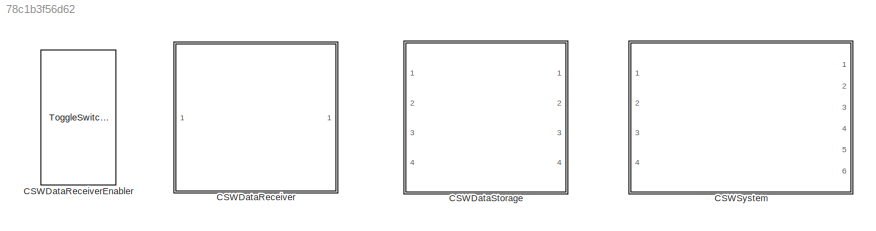
MODEL slx_78c1b3f56d62
KIND library
CONFIG AbsTol = auto
CONFIG EnableMultiTasking = off
CONFIG FixedStep = auto
CONFIG MaxStep = auto
CONFIG MinStep = auto
CONFIG RelTol = 1e-3
CONFIG SampleTimeConstraint = Unconstrained
CONFIG SolverName = VariableStepAuto
CONFIG StartTime = 0.0
CONFIG StopTime = 10.0
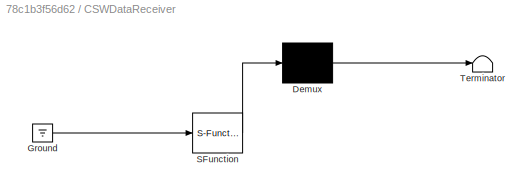
BLOCK [SubSystem] CSWDataReceiver
  ErrorFcn = Stateflow.Translate.translate
  PermitHierarchicalResolution = ExplicitOnly
  Ports = []
  RequestExecContextInheritance = off
  SFBlockType = MATLAB Function
  TreatAsAtomicUnit = on
BLOCK [Demux] CSWDataReceiver/ Demux 
  Outputs = 1
  Ports = [1, 1]
BLOCK [Ground] CSWDataReceiver/ Ground 
BLOCK [S-Function] CSWDataReceiver/ SFunction 
  EnableBusSupport = on
  FunctionName = sf_sfun
  PortCounts = [1 1]
  Ports = [1, 1]
  SFcnIsStateOwnerBlock = off
  SFunctionDeploymentMode = off
  Tag = Stateflow S-Function 10
BLOCK [Terminator] CSWDataReceiver/ Terminator 
BLOCK [ToggleSwitchBlock] CSWDataReceiverEnabler
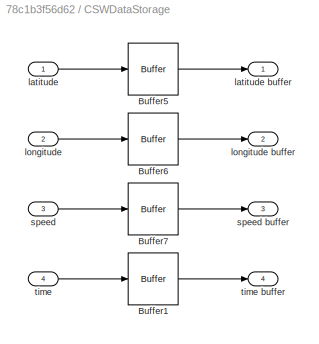
BLOCK [SubSystem] CSWDataStorage
  Ports = [4, 4]
  RequestExecContextInheritance = off
BLOCK [Buffer] CSWDataStorage/Buffer1
  N = 3
  OutputFrames = off
  V = 2
  ic = -199
BLOCK [Buffer] CSWDataStorage/Buffer5
  N = 3
  OutputFrames = off
  V = 2
  ic = -199
BLOCK [Buffer] CSWDataStorage/Buffer6
  N = 3
  OutputFrames = off
  V = 2
  ic = -199
BLOCK [Buffer] CSWDataStorage/Buffer7
  N = 3
  OutputFrames = off
  V = 2
  ic = -199
BLOCK [Inport] CSWDataStorage/latitude
BLOCK [Outport] CSWDataStorage/latitude buffer
BLOCK [Inport] CSWDataStorage/longitude
  Port = 2
BLOCK [Outport] CSWDataStorage/longitude buffer
  Port = 2
BLOCK [Inport] CSWDataStorage/speed
  Port = 3
BLOCK [Outport] CSWDataStorage/speed buffer
  Port = 3
BLOCK [Inport] CSWDataStorage/time
  Port = 4
BLOCK [Outport] CSWDataStorage/time buffer
  Port = 4
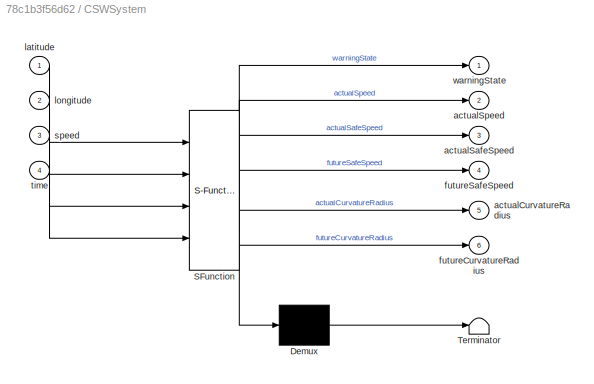
BLOCK [SubSystem] CSWSystem
  ErrorFcn = Stateflow.Translate.translate
  PermitHierarchicalResolution = ExplicitOnly
  Ports = [4, 6]
  RequestExecContextInheritance = off
  SFBlockType = MATLAB Function
  TreatAsAtomicUnit = on
BLOCK [Demux] CSWSystem/ Demux 
  Outputs = 1
  Ports = [1, 1]
BLOCK [S-Function] CSWSystem/ SFunction 
  EnableBusSupport = on
  FunctionName = sf_sfun
  PortCounts = [4 7]
  Ports = [4, 7]
  SFcnIsStateOwnerBlock = off
  SFunctionDeploymentMode = off
  Tag = Stateflow S-Function 1
BLOCK [Terminator] CSWSystem/ Terminator 
BLOCK [Outport] CSWSystem/actualCurvatureRadius
  Port = 5
BLOCK [Outport] CSWSystem/actualSafeSpeed
  Port = 3
BLOCK [Outport] CSWSystem/actualSpeed
  Port = 2
BLOCK [Outport] CSWSystem/futureCurvatureRadius
  Port = 6
BLOCK [Outport] CSWSystem/futureSafeSpeed
  Port = 4
BLOCK [Inport] CSWSystem/latitude
BLOCK [Inport] CSWSystem/longitude
  Port = 2
BLOCK [Inport] CSWSystem/speed
  Port = 3
BLOCK [Inport] CSWSystem/time
  Port = 4
BLOCK [Outport] CSWSystem/warningState
LINE CSWDataStorage/Buffer1:1 -> CSWDataStorage/time buffer:1
LINE CSWDataStorage/Buffer5:1 -> CSWDataStorage/latitude buffer:1
LINE CSWDataStorage/Buffer6:1 -> CSWDataStorage/longitude buffer:1
LINE CSWDataStorage/Buffer7:1 -> CSWDataStorage/speed buffer:1
LINE CSWDataStorage/latitude:1 -> CSWDataStorage/Buffer5:1
LINE CSWDataStorage/longitude:1 -> CSWDataStorage/Buffer6:1
LINE CSWDataStorage/speed:1 -> CSWDataStorage/Buffer7:1
LINE CSWDataStorage/time:1 -> CSWDataStorage/Buffer1:1
CHART CSWSystem states=1 transitions=1
  STATE_LABEL 'eML_blk_kernel()'
  STATE_LABEL "SCRIPT:\n%% main function which represents Curve Speed Warning System uses loaded GPS data from file to compute simulation results which containts warning state, recommended speed etc.\n\nfunction [warningState, actualSpeed, actualSafeSpeed, futureSafeSpeed, actualCurvatureRadius, futureCurvatureRadius] = CSWSystem(latitude,longitude,speed,time)\n    coder.extrinsic('plot','legend','serialport','readl...<+3608ch>"
CHART CSWDataReceiver states=1 transitions=1
  STATE_LABEL 'eML_blk_kernel()'
  STATE_LABEL "SCRIPT:\n%% main function which represents Curve Speed Warning System uses received GPS data from COM port to compute simulation results which containts warning state, recommended speed etc.\n\nfunction CSWDataReceiver %#codegen\n    coder.extrinsic('datestr', 'configureTerminator', 'serialport', 'read', 'readline', 'nmeaParser','getfield','set_param',...\n        'strings','strrep','datenum','posixtim...<+3608ch>"
CHART  states=0 transitions=0
CHART  states=0 transitions=0
